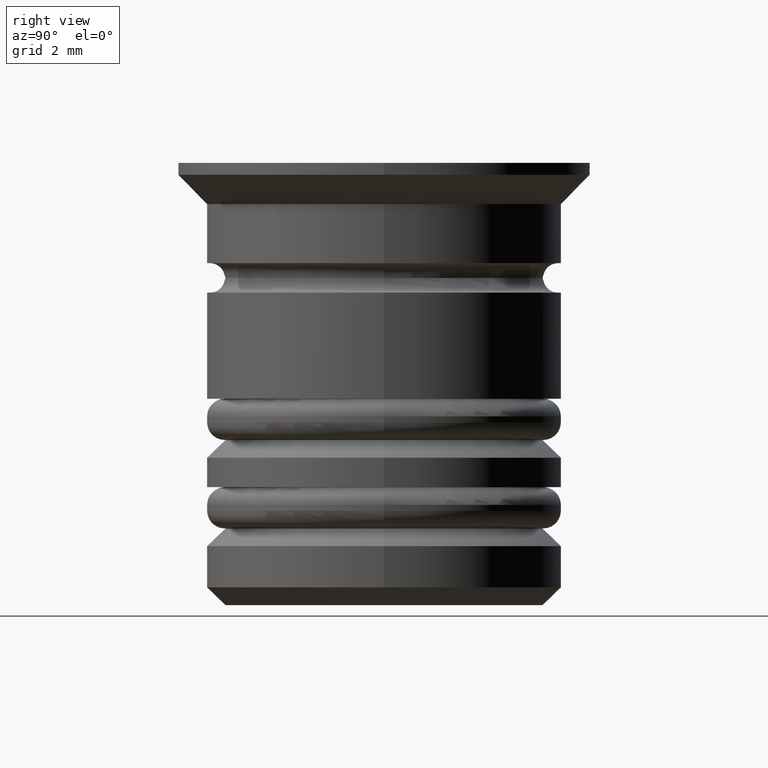
[diagram: clean part render]
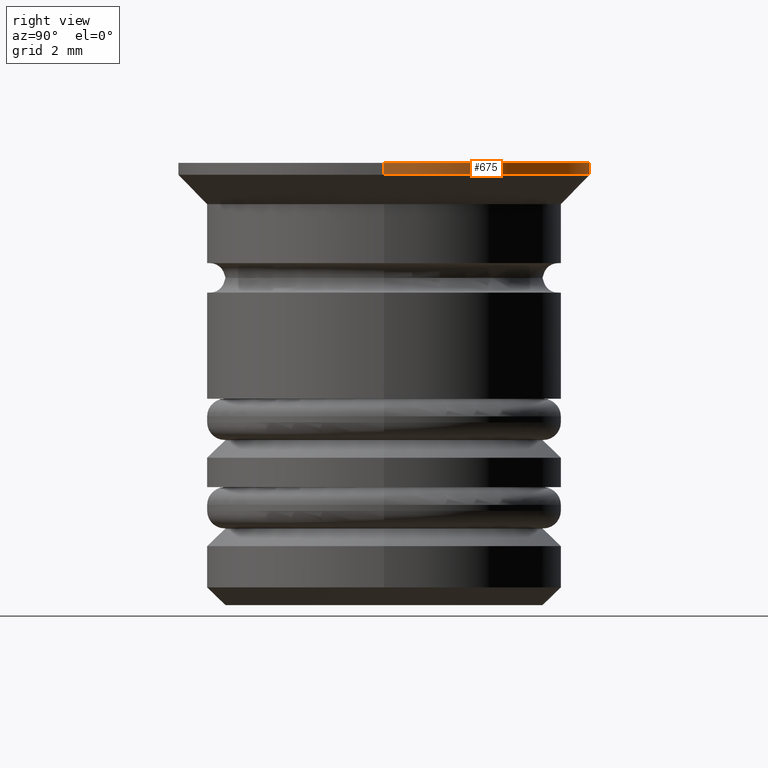
[diagram: same view with one face highlighted and labeled with its STEP entity id]
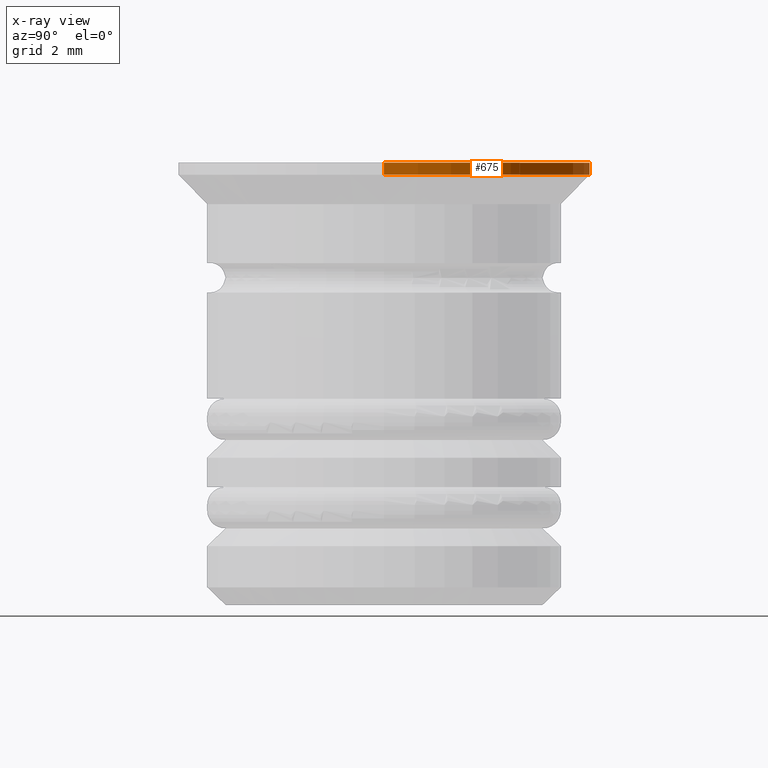
[diagram: x-ray of the same camera — body ghosted, the highlighted face saturated]
A machine part, right view. The second image highlights one B-rep face of the part: STEP entity #675.
The next image is the same camera in x-ray: the body ghosted, the highlighted face saturated — about 0% of this face is hidden behind the body in this view.
In plain terms, the highlighted cylindrical surface (partial cylindrical patch) has radius 3.5 mm, axis along (-0, -0, 1).
Its self-contained STEP definition (entity closure, byte-faithful):
#6 = ORIENTED_EDGE ( 'NONE', *, *, #1062, .T. ) ;
#41 = VERTEX_POINT ( 'NONE', #1307 ) ;
#42 = ORIENTED_EDGE ( 'NONE', *, *, #561, .T. ) ;
#78 = DIRECTION ( 'NONE',  ( 1.000000000000000000, 0.000000000000000000, 0.000000000000000000 ) ) ;
#105 = CARTESIAN_POINT ( 'NONE',  ( 3.500000000000000000, 0.000000000000000000, 0.000000000000000000 ) ) ;
#169 = EDGE_LOOP ( 'NONE', ( #42, #6, #1027, #522 ) ) ;
#191 = DIRECTION ( 'NONE',  ( -1.000000000000000000, 0.000000000000000000, 0.000000000000000000 ) ) ;
#324 = VECTOR ( 'NONE', #1763, 1000.000000000000000 ) ;
#367 = FACE_OUTER_BOUND ( 'NONE', #169, .T. ) ;
#381 = EDGE_CURVE ( 'NONE', #964, #748, #1654, .T. ) ;
#399 = LINE ( 'NONE', #105, #933 ) ;
#401 = VERTEX_POINT ( 'NONE', #414 ) ;
#414 = CARTESIAN_POINT ( 'NONE',  ( -3.500000000000000000, 4.286263797015736595E-16, -0.2000000000000007327 ) ) ;
#522 = ORIENTED_EDGE ( 'NONE', *, *, #714, .F. ) ;
#561 = EDGE_CURVE ( 'NONE', #41, #401, #963, .T. ) ;
#630 = DIRECTION ( 'NONE',  ( -0.000000000000000000, -0.000000000000000000, 1.000000000000000000 ) ) ;
#636 = AXIS2_PLACEMENT_3D ( 'NONE', #1418, #865, #997 ) ;
#675 = ADVANCED_FACE ( 'NONE', ( #367 ), #1512, .T. ) ;
#714 = EDGE_CURVE ( 'NONE', #41, #964, #399, .T. ) ;
#748 = VERTEX_POINT ( 'NONE', #1426 ) ;
#845 = AXIS2_PLACEMENT_3D ( 'NONE', #1155, #1045, #191 ) ;
#861 = CARTESIAN_POINT ( 'NONE',  ( 3.500000000000000000, 0.000000000000000000, 0.000000000000000000 ) ) ;
#865 = DIRECTION ( 'NONE',  ( -0.000000000000000000, -0.000000000000000000, 1.000000000000000000 ) ) ;
#933 = VECTOR ( 'NONE', #630, 1000.000000000000000 ) ;
#963 = CIRCLE ( 'NONE', #845, 3.500000000000000000 ) ;
#964 = VERTEX_POINT ( 'NONE', #861 ) ;
#997 = DIRECTION ( 'NONE',  ( 1.000000000000000000, 0.000000000000000000, 0.000000000000000000 ) ) ;
#1027 = ORIENTED_EDGE ( 'NONE', *, *, #381, .F. ) ;
#1045 = DIRECTION ( 'NONE',  ( -0.000000000000000000, -0.000000000000000000, 1.000000000000000000 ) ) ;
#1062 = EDGE_CURVE ( 'NONE', #401, #748, #1749, .T. ) ;
#1155 = CARTESIAN_POINT ( 'NONE',  ( 0.000000000000000000, 0.000000000000000000, -0.2000000000000007327 ) ) ;
#1195 = CARTESIAN_POINT ( 'NONE',  ( -3.500000000000000000, 4.286263797015736595E-16, 0.000000000000000000 ) ) ;
#1242 = DIRECTION ( 'NONE',  ( -0.000000000000000000, -0.000000000000000000, 1.000000000000000000 ) ) ;
#1307 = CARTESIAN_POINT ( 'NONE',  ( 3.500000000000000000, 0.000000000000000000, -0.2000000000000007327 ) ) ;
#1348 = AXIS2_PLACEMENT_3D ( 'NONE', #1778, #1242, #78 ) ;
#1418 = CARTESIAN_POINT ( 'NONE',  ( 0.000000000000000000, 0.000000000000000000, 0.000000000000000000 ) ) ;
#1426 = CARTESIAN_POINT ( 'NONE',  ( -3.500000000000000000, 4.286263797015736595E-16, 0.000000000000000000 ) ) ;
#1512 = CYLINDRICAL_SURFACE ( 'NONE', #1348, 3.500000000000000000 ) ;
#1654 = CIRCLE ( 'NONE', #636, 3.500000000000000000 ) ;
#1749 = LINE ( 'NONE', #1195, #324 ) ;
#1763 = DIRECTION ( 'NONE',  ( -0.000000000000000000, -0.000000000000000000, 1.000000000000000000 ) ) ;
#1778 = CARTESIAN_POINT ( 'NONE',  ( 0.000000000000000000, 0.000000000000000000, 0.000000000000000000 ) ) ;